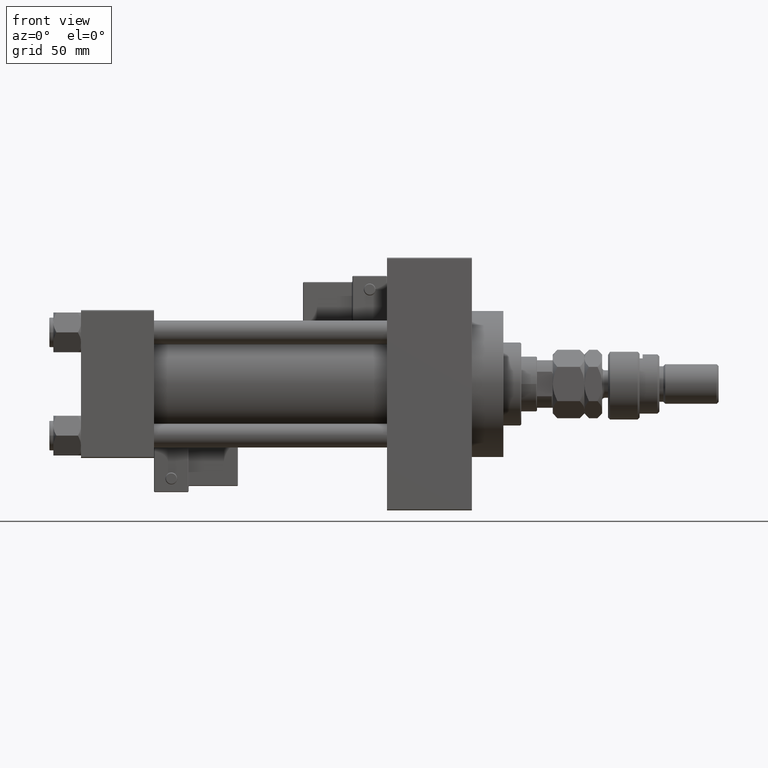
[diagram: clean part render]
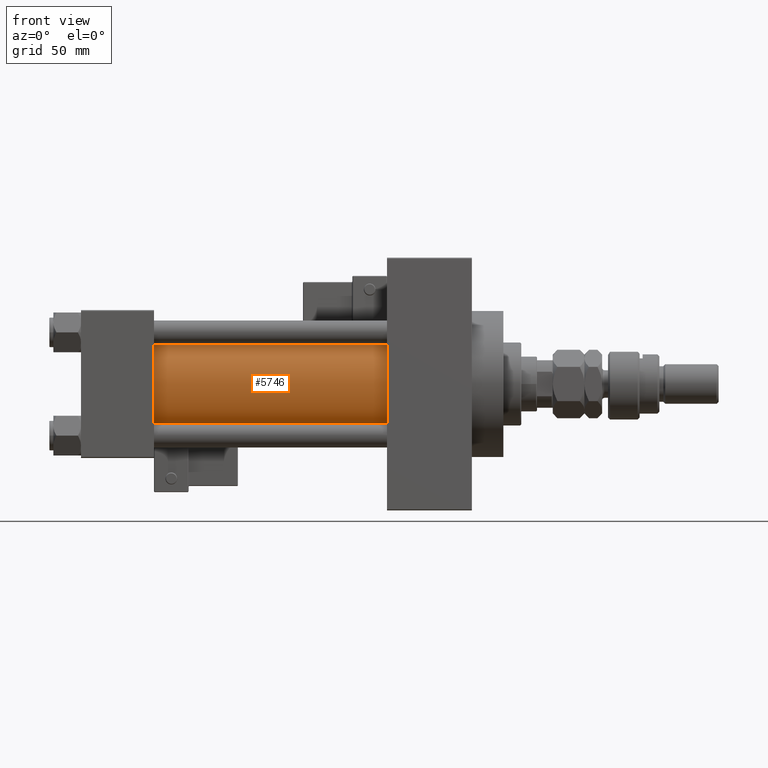
[diagram: same view with one face highlighted and labeled with its STEP entity id]
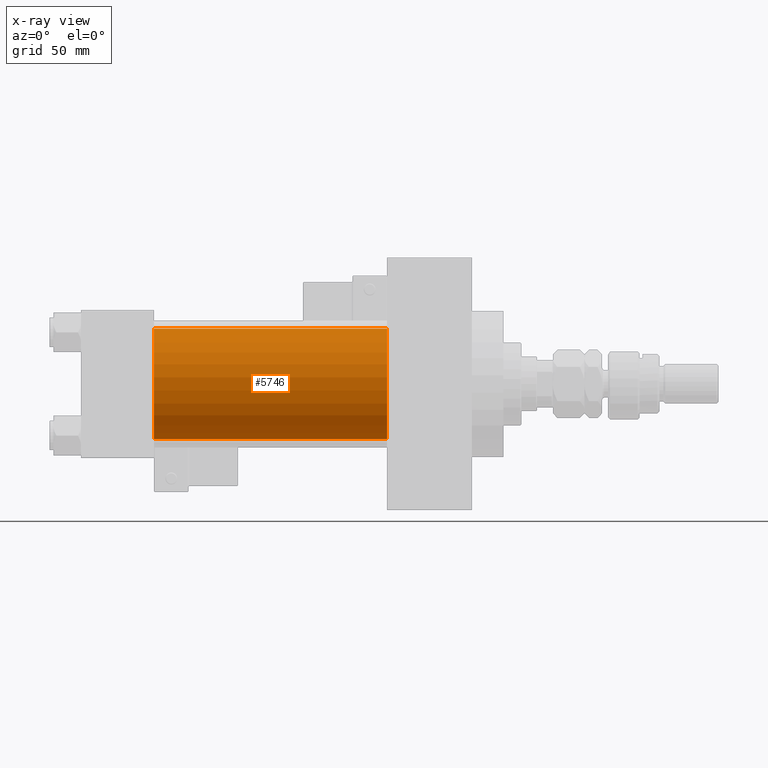
[diagram: x-ray of the same camera — body ghosted, the highlighted face saturated]
A machine part, front view. The second image highlights one B-rep face of the part: STEP entity #5746.
The next image is the same camera in x-ray: the body ghosted, the highlighted face saturated — about 0% of this face is hidden behind the body in this view.
In plain terms, the highlighted cylindrical surface (partial cylindrical patch) has radius 28 mm, axis along (-1, -0, -0).
Its self-contained STEP definition (entity closure, byte-faithful):
#1553 = VECTOR ( 'NONE', #44679, 1000.000000000000000 ) ;
#4981 = CYLINDRICAL_SURFACE ( 'NONE', #8340, 28.00000000000000000 ) ;
#5746 = ADVANCED_FACE ( 'NONE', ( #49762 ), #4981, .T. ) ;
#7450 = ORIENTED_EDGE ( 'NONE', *, *, #44266, .T. ) ;
#8340 = AXIS2_PLACEMENT_3D ( 'NONE', #28839, #9472, #41021 ) ;
#8688 = VERTEX_POINT ( 'NONE', #23100 ) ;
#9472 = DIRECTION ( 'NONE',  ( -1.000000000000000000, -0.000000000000000000, -0.000000000000000000 ) ) ;
#10070 = VECTOR ( 'NONE', #23354, 1000.000000000000000 ) ;
#13879 = AXIS2_PLACEMENT_3D ( 'NONE', #32774, #49220, #25351 ) ;
#17616 = VERTEX_POINT ( 'NONE', #28322 ) ;
#18883 = ORIENTED_EDGE ( 'NONE', *, *, #26387, .F. ) ;
#20808 = VERTEX_POINT ( 'NONE', #29833 ) ;
#23100 = CARTESIAN_POINT ( 'NONE',  ( 155.0000000000000000, -2.602085213965210642E-15, 28.00000000000000000 ) ) ;
#23354 = DIRECTION ( 'NONE',  ( -1.000000000000000000, -0.000000000000000000, -0.000000000000000000 ) ) ;
#25351 = DIRECTION ( 'NONE',  ( 0.000000000000000000, 0.000000000000000000, -1.000000000000000000 ) ) ;
#26387 = EDGE_CURVE ( 'NONE', #8688, #17616, #35898, .T. ) ;
#28322 = CARTESIAN_POINT ( 'NONE',  ( 155.0000000000000000, 8.269258236473784371E-16, -28.00000000000000000 ) ) ;
#28515 = LINE ( 'NONE', #45184, #1553 ) ;
#28839 = CARTESIAN_POINT ( 'NONE',  ( 155.0000000000000000, -2.602085213965210642E-15, 0.000000000000000000 ) ) ;
#29833 = CARTESIAN_POINT ( 'NONE',  ( 37.00000000000000711, -2.602085213965210642E-15, 28.00000000000000000 ) ) ;
#32774 = CARTESIAN_POINT ( 'NONE',  ( 155.0000000000000000, -2.602085213965210642E-15, 0.000000000000000000 ) ) ;
#33918 = CARTESIAN_POINT ( 'NONE',  ( 37.00000000000000711, 8.269258236473784371E-16, -28.00000000000000000 ) ) ;
#34202 = ORIENTED_EDGE ( 'NONE', *, *, #39860, .F. ) ;
#35271 = CARTESIAN_POINT ( 'NONE',  ( 155.0000000000000000, 8.269258236473784371E-16, -28.00000000000000000 ) ) ;
#35898 = CIRCLE ( 'NONE', #13879, 28.00000000000000000 ) ;
#39860 = EDGE_CURVE ( 'NONE', #17616, #46754, #46683, .T. ) ;
#39899 = CIRCLE ( 'NONE', #46669, 28.00000000000000000 ) ;
#41021 = DIRECTION ( 'NONE',  ( 0.000000000000000000, 0.000000000000000000, 1.000000000000000000 ) ) ;
#41877 = EDGE_LOOP ( 'NONE', ( #34202, #18883, #42684, #7450 ) ) ;
#42684 = ORIENTED_EDGE ( 'NONE', *, *, #52441, .T. ) ;
#44266 = EDGE_CURVE ( 'NONE', #20808, #46754, #39899, .T. ) ;
#44679 = DIRECTION ( 'NONE',  ( -1.000000000000000000, -0.000000000000000000, -0.000000000000000000 ) ) ;
#45177 = CARTESIAN_POINT ( 'NONE',  ( 37.00000000000000711, -2.602085213965210642E-15, 0.000000000000000000 ) ) ;
#45184 = CARTESIAN_POINT ( 'NONE',  ( 155.0000000000000000, -2.602085213965210642E-15, 28.00000000000000000 ) ) ;
#45434 = DIRECTION ( 'NONE',  ( 1.000000000000000000, -0.000000000000000000, 0.000000000000000000 ) ) ;
#46669 = AXIS2_PLACEMENT_3D ( 'NONE', #45177, #45434, #49685 ) ;
#46683 = LINE ( 'NONE', #35271, #10070 ) ;
#46754 = VERTEX_POINT ( 'NONE', #33918 ) ;
#49220 = DIRECTION ( 'NONE',  ( 1.000000000000000000, 0.000000000000000000, 0.000000000000000000 ) ) ;
#49685 = DIRECTION ( 'NONE',  ( 0.000000000000000000, 0.000000000000000000, 1.000000000000000000 ) ) ;
#49762 = FACE_OUTER_BOUND ( 'NONE', #41877, .T. ) ;
#52441 = EDGE_CURVE ( 'NONE', #8688, #20808, #28515, .T. ) ;